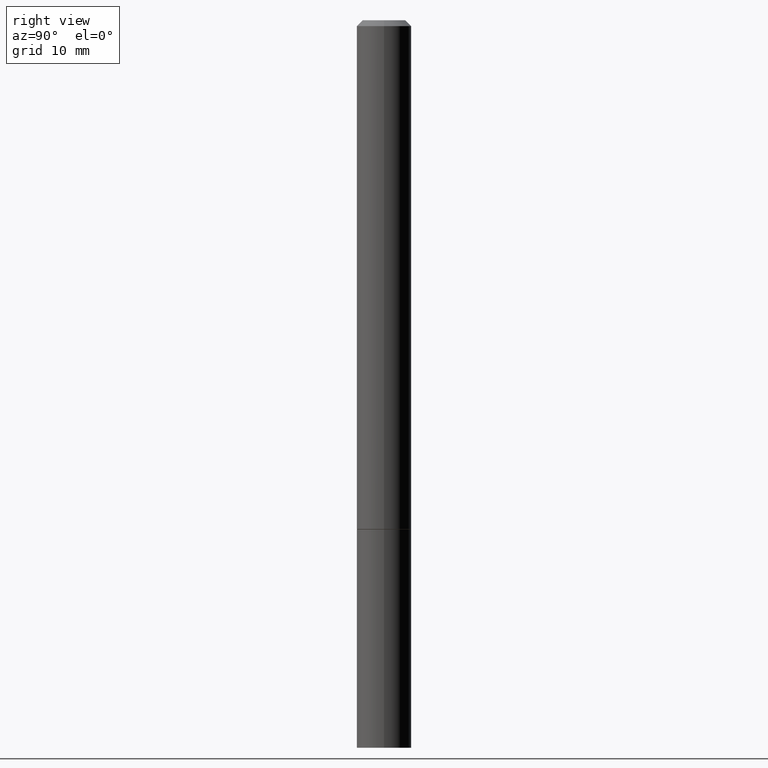
[diagram: clean part render]
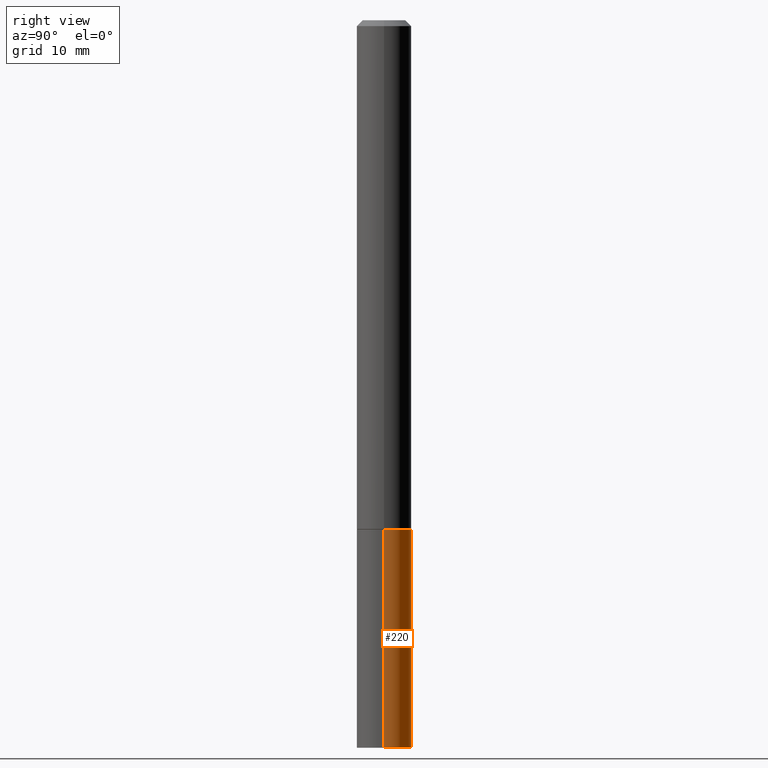
[diagram: same view with one face highlighted and labeled with its STEP entity id]
A machine part, right view. The second image highlights one B-rep face of the part: STEP entity #220.
In plain terms, the highlighted cylindrical surface (edge-blend (fillet) strip) has radius 2.3813 mm, axis along (-0, 0, 1).
Its self-contained STEP definition (entity closure, byte-faithful):
#3 = CIRCLE ( 'NONE', #142, 0.09375000000000001388 ) ;
#17 = VERTEX_POINT ( 'NONE', #369 ) ;
#22 = CARTESIAN_POINT ( 'NONE',  ( 0.09374999999999984734, -9.371875034398942871E-15, -2.500000000000000000 ) ) ;
#36 = EDGE_CURVE ( 'NONE', #17, #264, #378, .T. ) ;
#43 = DIRECTION ( 'NONE',  ( -2.445468806185136877E-29, 3.491481338843145188E-15, 1.000000000000000000 ) ) ;
#51 = DIRECTION ( 'NONE',  ( 1.000000000000000000, -6.982962677686272233E-15, 0.000000000000000000 ) ) ;
#54 = AXIS2_PLACEMENT_3D ( 'NONE', #383, #388, #198 ) ;
#55 = CARTESIAN_POINT ( 'NONE',  ( -0.09375000000000001388, -6.753264030266591277E-15, -1.750000000000000222 ) ) ;
#85 = CARTESIAN_POINT ( 'NONE',  ( 0.09375000000000001388, -6.546527510330875041E-16, 4.571415727308690506E-30 ) ) ;
#102 = CIRCLE ( 'NONE', #54, 0.09375000000000001388 ) ;
#112 = CARTESIAN_POINT ( 'NONE',  ( 0.000000000000000000, 0.000000000000000000, 0.000000000000000000 ) ) ;
#114 = LINE ( 'NONE', #85, #191 ) ;
#115 = FACE_OUTER_BOUND ( 'NONE', #143, .T. ) ;
#142 = AXIS2_PLACEMENT_3D ( 'NONE', #298, #356, #51 ) ;
#143 = EDGE_LOOP ( 'NONE', ( #381, #355, #350, #245 ) ) ;
#150 = EDGE_CURVE ( 'NONE', #295, #264, #102, .T. ) ;
#163 = CARTESIAN_POINT ( 'NONE',  ( -0.09375000000000001388, 6.661338147750940229E-16, -4.611501647113973995E-30 ) ) ;
#176 = VECTOR ( 'NONE', #43, 39.37007874015748143 ) ;
#181 = VERTEX_POINT ( 'NONE', #22 ) ;
#191 = VECTOR ( 'NONE', #206, 39.37007874015748143 ) ;
#198 = DIRECTION ( 'NONE',  ( 1.000000000000000000, -6.982962677686261189E-15, 0.000000000000000000 ) ) ;
#200 = DIRECTION ( 'NONE',  ( 1.000000000000000000, -6.982962677686265922E-15, 4.876176775795935793E-29 ) ) ;
#206 = DIRECTION ( 'NONE',  ( -2.445468806185136877E-29, 3.491481338843145188E-15, 1.000000000000000000 ) ) ;
#207 = AXIS2_PLACEMENT_3D ( 'NONE', #112, #300, #200 ) ;
#212 = CARTESIAN_POINT ( 'NONE',  ( 0.09375000000000001388, -6.764745094008592175E-15, -1.750000000000000222 ) ) ;
#220 = ADVANCED_FACE ( 'NONE', ( #115 ), #293, .T. ) ;
#237 = EDGE_CURVE ( 'NONE', #181, #17, #3, .T. ) ;
#245 = ORIENTED_EDGE ( 'NONE', *, *, #252, .F. ) ;
#252 = EDGE_CURVE ( 'NONE', #181, #295, #114, .T. ) ;
#264 = VERTEX_POINT ( 'NONE', #55 ) ;
#293 = CYLINDRICAL_SURFACE ( 'NONE', #207, 0.09375000000000001388 ) ;
#295 = VERTEX_POINT ( 'NONE', #212 ) ;
#298 = CARTESIAN_POINT ( 'NONE',  ( 6.113672015462842613E-29, -8.728703347107864943E-15, -2.500000000000000000 ) ) ;
#300 = DIRECTION ( 'NONE',  ( -2.445468806185136597E-29, 3.491481338843145583E-15, 1.000000000000000000 ) ) ;
#350 = ORIENTED_EDGE ( 'NONE', *, *, #150, .F. ) ;
#355 = ORIENTED_EDGE ( 'NONE', *, *, #36, .T. ) ;
#356 = DIRECTION ( 'NONE',  ( -2.445468806185136597E-29, 3.491481338843145583E-15, 1.000000000000000000 ) ) ;
#369 = CARTESIAN_POINT ( 'NONE',  ( -0.09374999999999984734, -8.074050596074776650E-15, -2.500000000000000000 ) ) ;
#378 = LINE ( 'NONE', #163, #176 ) ;
#381 = ORIENTED_EDGE ( 'NONE', *, *, #237, .T. ) ;
#383 = CARTESIAN_POINT ( 'NONE',  ( 4.279570410823989044E-29, -6.110092342975505460E-15, -1.750000000000000222 ) ) ;
#388 = DIRECTION ( 'NONE',  ( -2.445468806185136597E-29, 3.491481338843145583E-15, 1.000000000000000000 ) ) ;